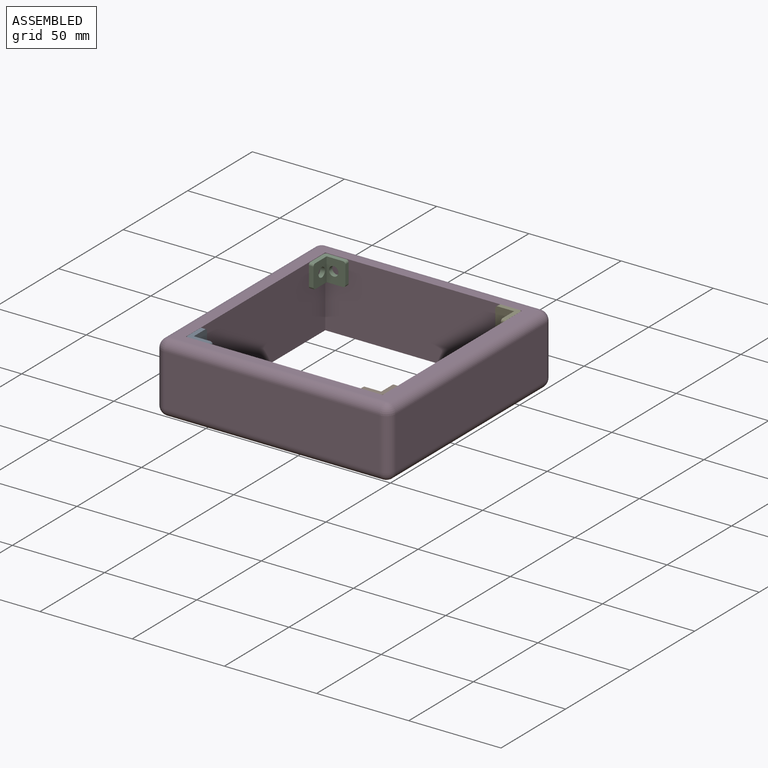
[diagram: assembled view]
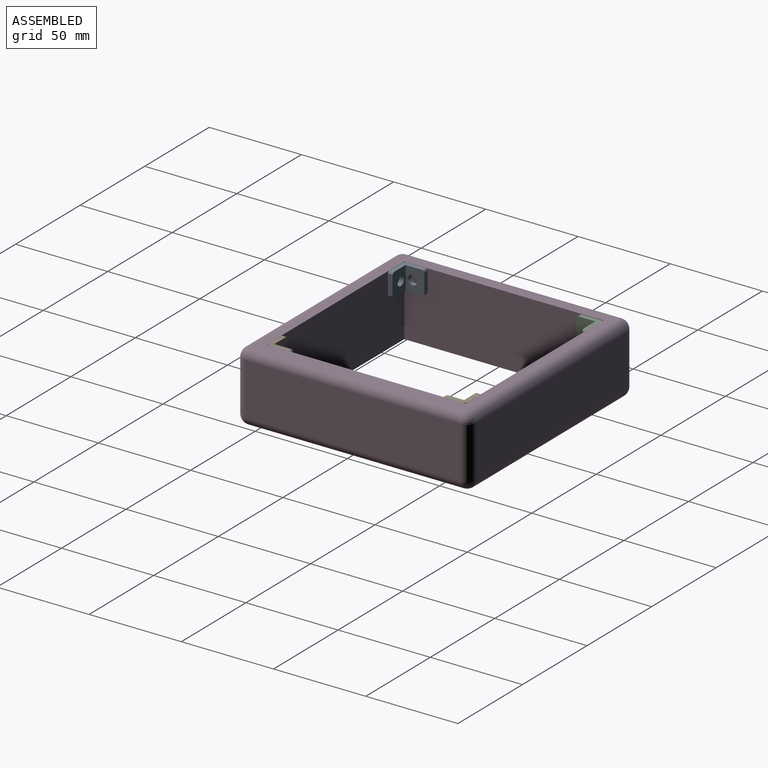
[diagram: assembled view, second angle]
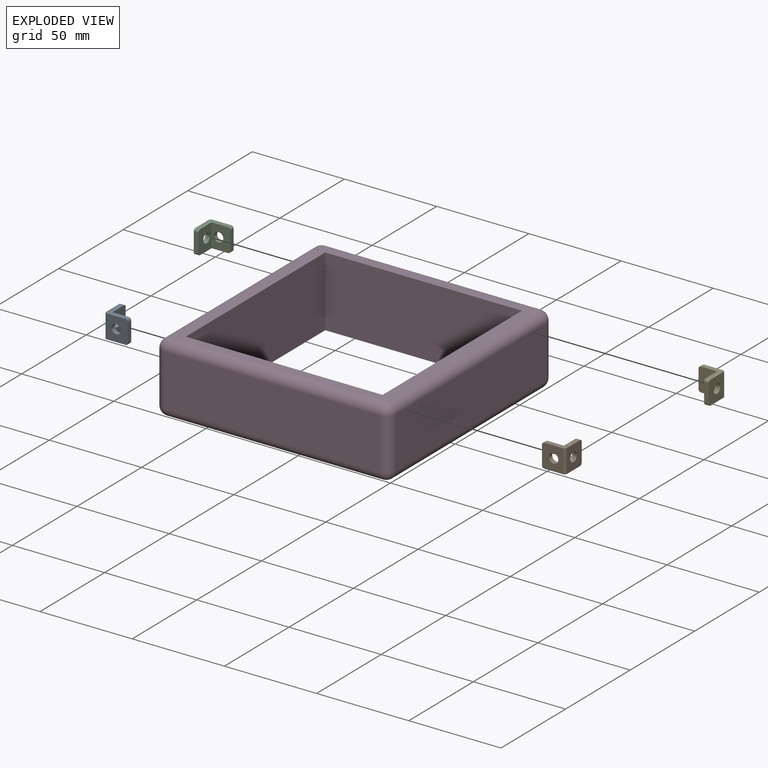
[diagram: exploded view]
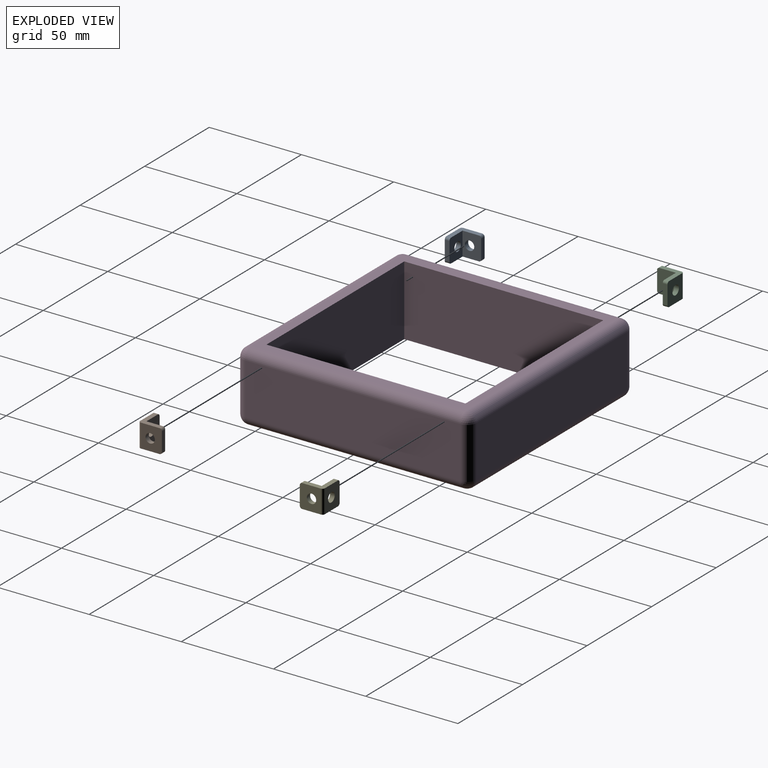
[diagram: exploded view, second angle]
ASSEMBLY  parts=5 mates=8
PART A: 15 faces, bbox 12.7x12.7x12.7 mm
  f0: plane 11.43x11.43mm, normal (1,0,0), area 51.3mm2, adj f1,f5,f6,f7,f10,f13,f14
  f1: plane 12.7x11.43mm, normal (0,1,0), area 124.2mm2, adj f0,f2,f8,f9,f10,f11,f14
  f2: plane 11.43x11.43mm, normal (-1,0,0), area 51.3mm2, adj f1,f5,f6,f7,f11,f12,f14
  f3: plane 10.16x2.54mm, normal (0,-1,0), area 25.8mm2, adj f5,f6,f12,f13
  f4: cylinder r=2.54mm len=5.08mm, axis (0,0,-1), area 40.5mm2, adj f5,f6
  f5: plane 12.7x10.16mm, normal (0,0,1), area 108.1mm2, adj f0,f2,f3,f4,f7,f12,f13
  f6: plane 12.7x11.43mm, normal (0,0,-1), area 124.2mm2, adj f0,f2,f3,f4,f12,f13,f14
  f7: plane 12.7x10.16mm, normal (0,-1,0), area 108.1mm2, adj f0,f2,f5,f8,f9,f10,f11
  f8: plane 10.16x2.54mm, normal (0,0,1), area 25.8mm2, adj f1,f7,f10,f11
  f9: cylinder r=2.54mm len=5.08mm, axis (0,-1,0), area 40.5mm2, adj f1,f7
  f10: cylinder r=1.27mm len=2.54mm, axis (0,-1,0), area 5.1mm2, adj f0,f1,f7,f8
  f11: cylinder r=1.27mm len=2.54mm, axis (0,1,0), area 5.1mm2, adj f1,f2,f7,f8
  f12: cylinder r=1.27mm len=2.54mm, axis (0,0,1), area 5.1mm2, adj f2,f3,f5,f6
  f13: cylinder r=1.27mm len=2.54mm, axis (0,0,-1), area 5.1mm2, adj f0,f3,f5,f6
  f14: cylinder r=1.27mm len=12.7mm, axis (-1,0,0), area 25.3mm2, adj f0,f1,f2,f6
PART B: same geometry as A
PART C: same geometry as A
PART D: 30 faces, bbox 127x127x38.1 mm
  f0: plane 116.84x116.84mm, normal (0,0,1), area 2132mm2, adj f10,f11,f12,f13,f26,f27,f28,f29
  f1: plane 116.84x116.84mm, normal (0,0,-1), area 2132mm2, adj f6,f7,f8,f9,f26,f27,f28,f29
  f2: plane 116.84x27.94mm, normal (1,0,0), area 3264.5mm2, adj f6,f10,f15,f18
  f3: plane 116.84x27.94mm, normal (0,1,0), area 3264.5mm2, adj f7,f11,f18,f21
  f4: plane 116.84x27.94mm, normal (-1,0,0), area 3264.5mm2, adj f9,f13,f21,f24
  f5: plane 116.84x27.94mm, normal (0,-1,0), area 3264.5mm2, adj f8,f12,f15,f24
  f6: cylinder r=5.08mm len=116.84mm, axis (0,1,0), area 932.3mm2, adj f1,f2,f14,f17
  f7: cylinder r=5.08mm len=116.84mm, axis (-1,0,0), area 932.3mm2, adj f1,f3,f17,f20
  f8: cylinder r=5.08mm len=116.84mm, axis (1,0,0), area 932.3mm2, adj f1,f5,f14,f23
  f9: cylinder r=5.08mm len=116.84mm, axis (0,-1,0), area 932.3mm2, adj f1,f4,f20,f23
  f10: cylinder r=5.08mm len=116.84mm, axis (0,-1,0), area 932.3mm2, adj f0,f2,f16,f19
  f11: cylinder r=5.08mm len=116.84mm, axis (1,0,0), area 932.3mm2, adj f0,f3,f19,f22
  f12: cylinder r=5.08mm len=116.84mm, axis (-1,0,0), area 932.3mm2, adj f0,f5,f16,f25
  f13: cylinder r=5.08mm len=116.84mm, axis (0,1,0), area 932.3mm2, adj f0,f4,f22,f25
  f14: sphere r=5.08mm, area 40.5mm2, adj f6,f8,f15
  f15: cylinder r=5.08mm len=27.94mm, axis (0,0,-1), area 223mm2, adj f2,f5,f14,f16
  f16: sphere r=5.08mm, area 40.5mm2, adj f10,f12,f15
  f17: sphere r=5.08mm, area 40.5mm2, adj f6,f7,f18
  f18: cylinder r=5.08mm len=27.94mm, axis (0,0,1), area 223mm2, adj f2,f3,f17,f19
  f19: sphere r=5.08mm, area 40.5mm2, adj f10,f11,f18
  f20: sphere r=5.08mm, area 40.5mm2, adj f7,f9,f21
  f21: cylinder r=5.08mm len=27.94mm, axis (0,0,-1), area 223mm2, adj f3,f4,f20,f22
  f22: sphere r=5.08mm, area 40.5mm2, adj f11,f13,f21
  f23: sphere r=5.08mm, area 40.5mm2, adj f8,f9,f24
  f24: cylinder r=5.08mm len=27.94mm, axis (0,0,1), area 223mm2, adj f4,f5,f23,f25
  f25: sphere r=5.08mm, area 40.5mm2, adj f12,f13,f24
  f26: plane 106.71x38.1mm, normal (0,1,0), area 4065.7mm2, adj f0,f1,f27,f29
  f27: plane 107.95x38.1mm, normal (-1,0,0), area 4112.9mm2, adj f0,f1,f26,f28
  f28: plane 106.71x38.1mm, normal (0,-1,0), area 4065.7mm2, adj f0,f1,f27,f29
  f29: plane 107.95x38.1mm, normal (1,0,0), area 4112.9mm2, adj f0,f1,f26,f28
PART E: same geometry as A
PLACE A rot(axis=(0.71,0,0.71),180deg) t=(-112.43,-41.53,92.22)mm
PLACE B rot(axis=(-0.58,-0.58,-0.58),120deg) t=(-12.07,-47.88,92.27)mm
PLACE C rot(axis=(0.58,-0.58,0.58),120deg) t=(-106.08,60.07,92.08)mm
PLACE D t=(-59.07,6.1,60.56)mm
PLACE E rot(axis=(0.58,0.58,-0.58),120deg) t=(-12.07,60.07,92.35)mm
MATE planar B.f12 <-> D.f26  axis (0,-1,0) through (-17.15,-47.88,87.19)mm
MATE planar C.f1 <-> D.f29  axis (-1,0,0) through (-112.43,53.01,92.08)mm
MATE planar E.f11 <-> D.f27  axis (1,0,0) through (-5.72,48.64,97.43)mm
MATE planar A.f13 <-> D.f29  axis (-1,0,0) through (-112.43,-36.45,97.3)mm
MATE planar C.f13 <-> D.f28  axis (0,1,0) through (-101,60.07,97.16)mm
MATE planar B.f10 <-> D.f27  axis (1,0,0) through (-5.72,-36.45,97.35)mm
MATE planar A.f1 <-> D.f26  axis (0,-1,0) through (-106.08,-47.88,85.87)mm
MATE planar E.f6 <-> D.f28  axis (0,1,0) through (-12.07,60.07,86)mm
